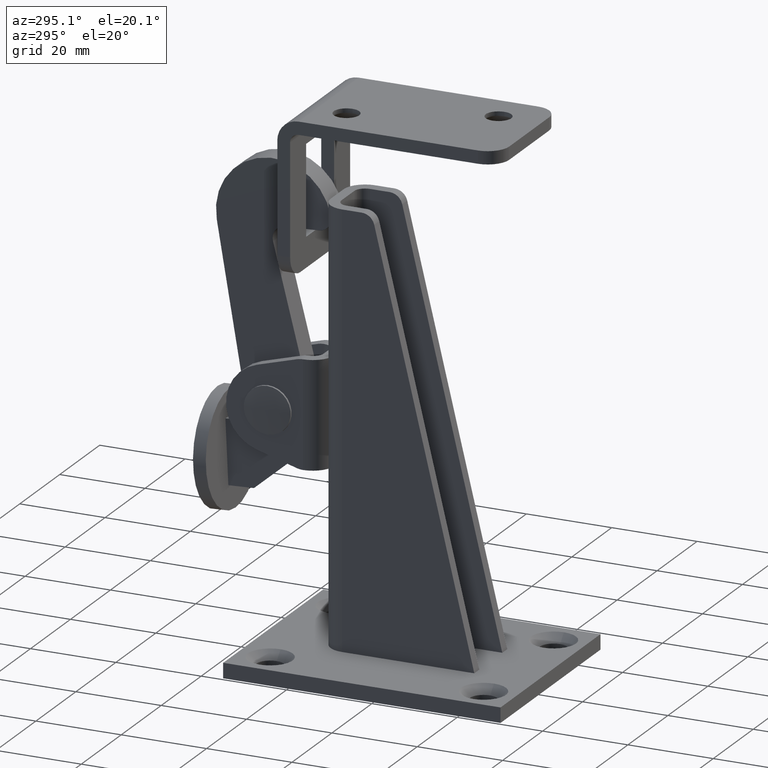
[diagram: clean part render]
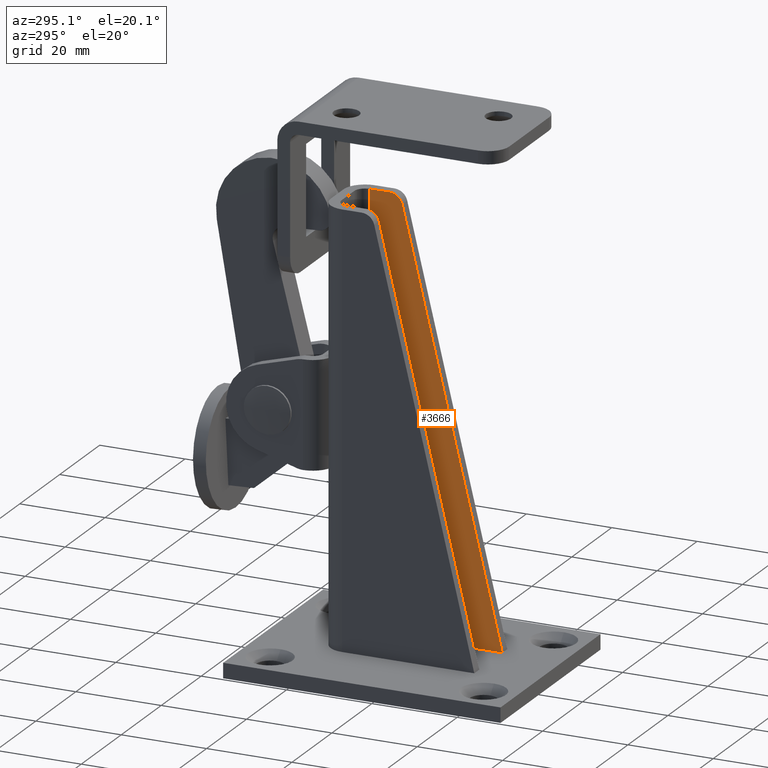
[diagram: same view with one face highlighted and labeled with its STEP entity id]
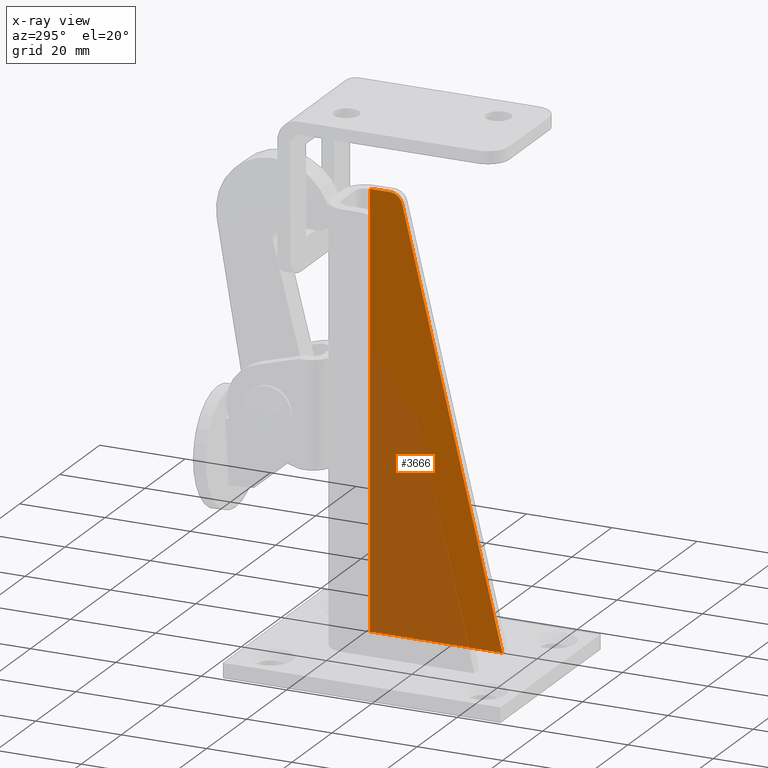
[diagram: x-ray of the same camera — body ghosted, the highlighted face saturated]
A machine part, auxiliary view. The second image highlights one B-rep face of the part: STEP entity #3666.
The next image is the same camera in x-ray: the body ghosted, the highlighted face saturated — about 49% of this face is hidden behind the body in this view.
In plain terms, the highlighted planar face has unit normal (1, -0, 0).
Its self-contained STEP definition (entity closure, byte-faithful):
#330 = VERTEX_POINT ( 'NONE', #9203 ) ;
#796 = EDGE_CURVE ( 'NONE', #10582, #10640, #3817, .T. ) ;
#909 = DIRECTION ( 'NONE',  ( 1.000000000000000000, -2.797941090285173300E-017, 0.0000000000000000000 ) ) ;
#1083 = ORIENTED_EDGE ( 'NONE', *, *, #3893, .T. ) ;
#1618 = CARTESIAN_POINT ( 'NONE',  ( 5.749999999999999100, 5.881240544629336300, 105.0885022692889700 ) ) ;
#1811 = DIRECTION ( 'NONE',  ( -2.797941090285173300E-017, -1.000000000000000000, 0.0000000000000000000 ) ) ;
#2010 = VECTOR ( 'NONE', #11623, 1000.000000000000000 ) ;
#2075 = EDGE_LOOP ( 'NONE', ( #3234, #1083, #7527, #10725, #7155 ) ) ;
#2082 = CARTESIAN_POINT ( 'NONE',  ( 5.749999999999999100, 12.49999999999998800, 103.5000000000000100 ) ) ;
#2677 = CIRCLE ( 'NONE', #10299, 2.999999999999999100 ) ;
#2876 = CARTESIAN_POINT ( 'NONE',  ( 5.749999999999999100, 12.49999999999998800, 103.5000000000000100 ) ) ;
#3234 = ORIENTED_EDGE ( 'NONE', *, *, #9431, .T. ) ;
#3291 = AXIS2_PLACEMENT_3D ( 'NONE', #5109, #909, #8345 ) ;
#3335 = LINE ( 'NONE', #2082, #2010 ) ;
#3666 = ADVANCED_FACE ( 'NONE', ( #9978 ), #11492, .F. ) ;
#3817 = LINE ( 'NONE', #11273, #11961 ) ;
#3893 = EDGE_CURVE ( 'NONE', #4553, #330, #2677, .T. ) ;
#4553 = VERTEX_POINT ( 'NONE', #10433 ) ;
#4613 = DIRECTION ( 'NONE',  ( 0.0000000000000000000, 1.000000000000000000, 0.0000000000000000000 ) ) ;
#5109 = CARTESIAN_POINT ( 'NONE',  ( 5.749999999999999100, 12.49999999999998800, 103.5000000000000100 ) ) ;
#5368 = CARTESIAN_POINT ( 'NONE',  ( 5.749999999999998200, 7.865190431723776000, 100.5000000000000000 ) ) ;
#5659 = DIRECTION ( 'NONE',  ( 6.529637730918784300E-018, 0.2333729524753241600, 0.9723873019805174800 ) ) ;
#6042 = DIRECTION ( 'NONE',  ( -0.0000000000000000000, -0.0000000000000000000, -1.000000000000000000 ) ) ;
#6970 = LINE ( 'NONE', #1618, #11802 ) ;
#7155 = ORIENTED_EDGE ( 'NONE', *, *, #796, .T. ) ;
#7527 = ORIENTED_EDGE ( 'NONE', *, *, #9656, .F. ) ;
#7776 = VECTOR ( 'NONE', #6042, 1000.000000000000000 ) ;
#8345 = DIRECTION ( 'NONE',  ( 2.797941090285173300E-017, 1.000000000000000000, 0.0000000000000000000 ) ) ;
#8824 = CARTESIAN_POINT ( 'NONE',  ( 5.749999999999998200, -18.50000000000001100, 3.500000000000000000 ) ) ;
#9098 = CARTESIAN_POINT ( 'NONE',  ( 5.749999999999999100, 12.49999999999998800, 103.5000000000000100 ) ) ;
#9203 = CARTESIAN_POINT ( 'NONE',  ( 5.749999999999999100, 7.865190431723776000, 103.5000000000000100 ) ) ;
#9431 = EDGE_CURVE ( 'NONE', #10640, #4553, #6970, .T. ) ;
#9656 = EDGE_CURVE ( 'NONE', #10692, #330, #3335, .T. ) ;
#9978 = FACE_OUTER_BOUND ( 'NONE', #2075, .T. ) ;
#10299 = AXIS2_PLACEMENT_3D ( 'NONE', #5368, #10984, #4613 ) ;
#10433 = CARTESIAN_POINT ( 'NONE',  ( 5.749999999999999100, 4.948028525782221200, 101.2001188574259800 ) ) ;
#10582 = VERTEX_POINT ( 'NONE', #12190 ) ;
#10640 = VERTEX_POINT ( 'NONE', #8824 ) ;
#10692 = VERTEX_POINT ( 'NONE', #9098 ) ;
#10725 = ORIENTED_EDGE ( 'NONE', *, *, #11475, .T. ) ;
#10984 = DIRECTION ( 'NONE',  ( -1.000000000000000000, 2.797941090285173300E-017, -0.0000000000000000000 ) ) ;
#11273 = CARTESIAN_POINT ( 'NONE',  ( 5.749999999999999100, 12.49999999999998800, 3.500000000000000000 ) ) ;
#11475 = EDGE_CURVE ( 'NONE', #10692, #10582, #13275, .T. ) ;
#11492 = PLANE ( 'NONE',  #3291 ) ;
#11623 = DIRECTION ( 'NONE',  ( -2.797941090285173300E-017, -1.000000000000000000, 0.0000000000000000000 ) ) ;
#11802 = VECTOR ( 'NONE', #5659, 1000.000000000000100 ) ;
#11961 = VECTOR ( 'NONE', #1811, 1000.000000000000000 ) ;
#12190 = CARTESIAN_POINT ( 'NONE',  ( 5.749999999999999100, 12.49999999999998800, 3.500000000000003100 ) ) ;
#13275 = LINE ( 'NONE', #2876, #7776 ) ;